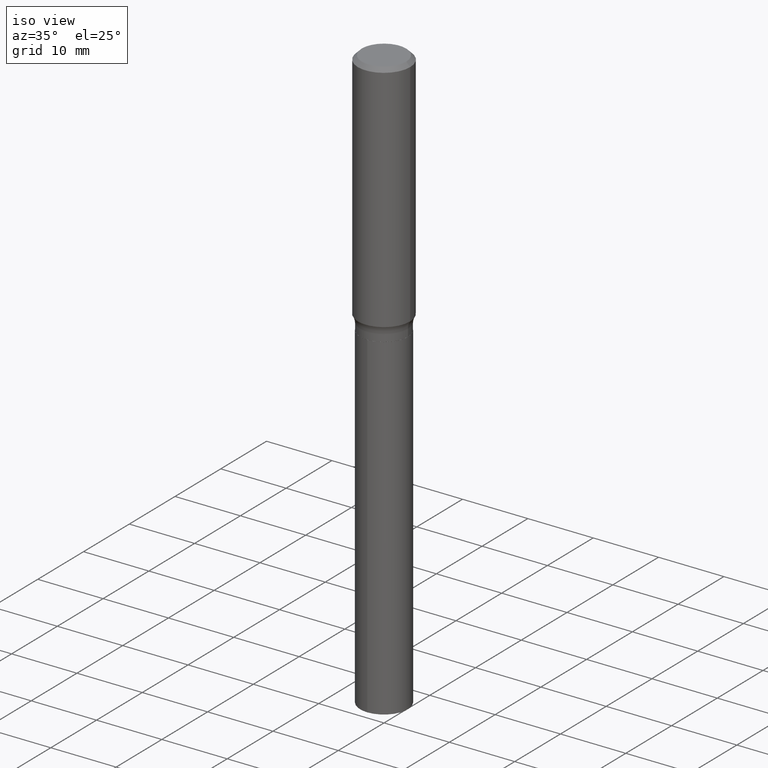
[diagram: clean part render]
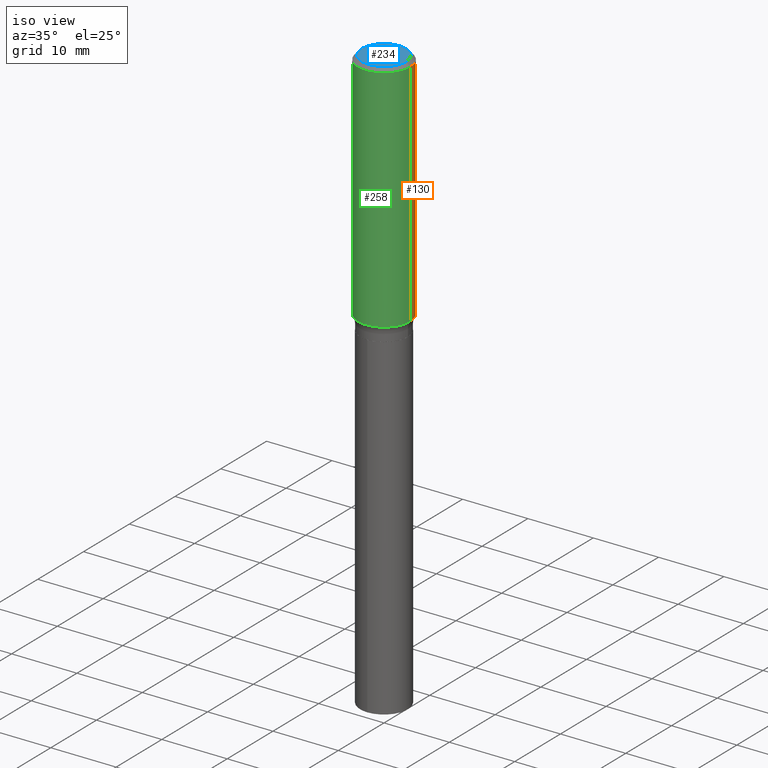
[diagram: same view with three faces highlighted in distinct colors, each labeled with its STEP entity id]
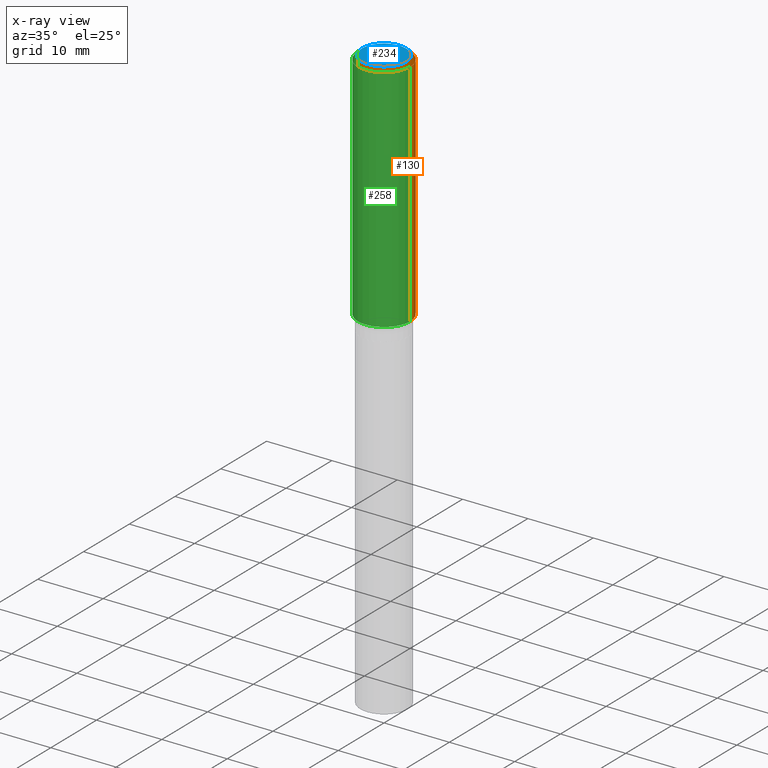
[diagram: x-ray of the same camera — body ghosted, the three highlighted faces saturated]
A machine part, iso view with three faces highlighted in distinct colors.
The next image is the same camera in x-ray (body ghosted, the three faces saturated) — at least one of them is partly hidden behind the body in this view.
Their STEP definitions:

[orange] entity #130 — the highlighted cylindrical surface (edge-blend (fillet) strip) has radius 4.0005 mm, axis along (-0, 0, 1).
#8 = CARTESIAN_POINT ( 'NONE',  ( -0.1575000000000000844, 1.119104808822158392E-15, -7.747322767151481189E-30 ) ) ;
#11 = DIRECTION ( 'NONE',  ( 1.000000000000000000, -6.982962677686265922E-15, 0.000000000000000000 ) ) ;
#36 = DIRECTION ( 'NONE',  ( -2.445468806185136597E-29, 3.491481338843145583E-15, 1.000000000000000000 ) ) ;
#50 = DIRECTION ( 'NONE',  ( 1.000000000000000000, -6.982962677686267499E-15, 0.000000000000000000 ) ) ;
#60 = CARTESIAN_POINT ( 'NONE',  ( 0.1575000000000001676, -6.017922358655901068E-15, -1.408601467292922571 ) ) ;
#63 = CARTESIAN_POINT ( 'NONE',  ( -0.1575000000000001676, -3.799000928098153617E-15, -1.408601467292922571 ) ) ;
#74 = DIRECTION ( 'NONE',  ( -2.445468806185136877E-29, 3.491481338843145188E-15, 1.000000000000000000 ) ) ;
#76 = AXIS2_PLACEMENT_3D ( 'NONE', #351, #36, #11 ) ;
#85 = VECTOR ( 'NONE', #277, 39.37007874015748143 ) ;
#88 = FACE_OUTER_BOUND ( 'NONE', #190, .T. ) ;
#116 = ORIENTED_EDGE ( 'NONE', *, *, #293, .F. ) ;
#128 = DIRECTION ( 'NONE',  ( 1.000000000000000000, -6.982962677686267499E-15, 4.876176775795936353E-29 ) ) ;
#130 = ADVANCED_FACE ( 'NONE', ( #88 ), #315, .T. ) ;
#161 = CARTESIAN_POINT ( 'NONE',  ( -0.1575000000000000011, -1.381191182953082113E-15, -0.02362500000000014588 ) ) ;
#190 = EDGE_LOOP ( 'NONE', ( #471, #263, #116, #416 ) ) ;
#194 = VERTEX_POINT ( 'NONE', #63 ) ;
#255 = EDGE_CURVE ( 'NONE', #194, #408, #346, .T. ) ;
#263 = ORIENTED_EDGE ( 'NONE', *, *, #255, .T. ) ;
#273 = CARTESIAN_POINT ( 'NONE',  ( 0.1575000000000000011, -1.182302868365756679E-15, -0.02362500000000014588 ) ) ;
#277 = DIRECTION ( 'NONE',  ( -2.445468806185136877E-29, 3.491481338843145188E-15, 1.000000000000000000 ) ) ;
#284 = CARTESIAN_POINT ( 'NONE',  ( 0.000000000000000000, 0.000000000000000000, 0.000000000000000000 ) ) ;
#285 = CARTESIAN_POINT ( 'NONE',  ( 3.444690948611454884E-29, -4.918105736920312010E-15, -1.408601467292922571 ) ) ;
#293 = EDGE_CURVE ( 'NONE', #345, #408, #295, .T. ) ;
#295 = CIRCLE ( 'NONE', #76, 0.1575000000000000011 ) ;
#315 = CYLINDRICAL_SURFACE ( 'NONE', #347, 0.1575000000000000844 ) ;
#318 = AXIS2_PLACEMENT_3D ( 'NONE', #285, #355, #50 ) ;
#339 = VERTEX_POINT ( 'NONE', #60 ) ;
#345 = VERTEX_POINT ( 'NONE', #273 ) ;
#346 = LINE ( 'NONE', #8, #476 ) ;
#347 = AXIS2_PLACEMENT_3D ( 'NONE', #284, #431, #128 ) ;
#351 = CARTESIAN_POINT ( 'NONE',  ( 5.777420054612421104E-31, -8.248624663016984002E-17, -0.02362500000000014588 ) ) ;
#355 = DIRECTION ( 'NONE',  ( -2.445468806185136597E-29, 3.491481338843145583E-15, 1.000000000000000000 ) ) ;
#383 = EDGE_CURVE ( 'NONE', #339, #194, #406, .T. ) ;
#405 = EDGE_CURVE ( 'NONE', #339, #345, #427, .T. ) ;
#406 = CIRCLE ( 'NONE', #318, 0.1575000000000001676 ) ;
#408 = VERTEX_POINT ( 'NONE', #161 ) ;
#416 = ORIENTED_EDGE ( 'NONE', *, *, #405, .F. ) ;
#427 = LINE ( 'NONE', #434, #85 ) ;
#431 = DIRECTION ( 'NONE',  ( -2.445468806185136597E-29, 3.491481338843145583E-15, 1.000000000000000000 ) ) ;
#434 = CARTESIAN_POINT ( 'NONE',  ( 0.1575000000000000844, -1.099816621735587677E-15, 7.679978421878603638E-30 ) ) ;
#471 = ORIENTED_EDGE ( 'NONE', *, *, #383, .T. ) ;
#476 = VECTOR ( 'NONE', #74, 39.37007874015748143 ) ;

[blue] entity #234 — the highlighted planar face has unit normal (0, -0, -1).
#5 = EDGE_LOOP ( 'NONE', ( #73, #448 ) ) ;
#16 = CARTESIAN_POINT ( 'NONE',  ( -1.002970424325032604E-46, 1.431975951230895391E-32, 4.101342130344482109E-18 ) ) ;
#73 = ORIENTED_EDGE ( 'NONE', *, *, #391, .T. ) ;
#84 = AXIS2_PLACEMENT_3D ( 'NONE', #185, #379, #377 ) ;
#109 = FACE_OUTER_BOUND ( 'NONE', #5, .T. ) ;
#121 = DIRECTION ( 'NONE',  ( 1.000000000000000000, -6.982962677686266711E-15, 4.876170806578254279E-29 ) ) ;
#137 = AXIS2_PLACEMENT_3D ( 'NONE', #191, #154, #228 ) ;
#154 = DIRECTION ( 'NONE',  ( -2.445468806185136597E-29, 3.491481338843145583E-15, 1.000000000000000000 ) ) ;
#172 = CIRCLE ( 'NONE', #456, 0.1338749999999999940 ) ;
#185 = CARTESIAN_POINT ( 'NONE',  ( -5.014852121625163022E-47, 7.159879756154476955E-33, 2.050671065172241055E-18 ) ) ;
#189 = CARTESIAN_POINT ( 'NONE',  ( -0.1338749999999999940, 9.760872517903331886E-16, 4.101342130337800673E-18 ) ) ;
#191 = CARTESIAN_POINT ( 'NONE',  ( -1.002970424325032604E-46, 1.431975951230895391E-32, 4.101342130344482109E-18 ) ) ;
#228 = DIRECTION ( 'NONE',  ( 1.000000000000000000, -6.982962677686266711E-15, 4.876170806578254279E-29 ) ) ;
#234 = ADVANCED_FACE ( 'NONE', ( #109 ), #310, .F. ) ;
#249 = VERTEX_POINT ( 'NONE', #189 ) ;
#262 = CARTESIAN_POINT ( 'NONE',  ( 0.1338749999999999940, -1.040731925365424925E-15, 4.101342130351390035E-18 ) ) ;
#269 = EDGE_CURVE ( 'NONE', #280, #249, #466, .T. ) ;
#280 = VERTEX_POINT ( 'NONE', #262 ) ;
#310 = PLANE ( 'NONE',  #84 ) ;
#312 = DIRECTION ( 'NONE',  ( -2.445468806185136597E-29, 3.491481338843145583E-15, 1.000000000000000000 ) ) ;
#377 = DIRECTION ( 'NONE',  ( -1.000000000000000000, 6.982962677686265922E-15, -4.876176775795935793E-29 ) ) ;
#379 = DIRECTION ( 'NONE',  ( 2.438088387897960049E-29, -3.491481338843145188E-15, -1.000000000000000000 ) ) ;
#391 = EDGE_CURVE ( 'NONE', #249, #280, #172, .T. ) ;
#448 = ORIENTED_EDGE ( 'NONE', *, *, #269, .T. ) ;
#456 = AXIS2_PLACEMENT_3D ( 'NONE', #16, #312, #121 ) ;
#466 = CIRCLE ( 'NONE', #137, 0.1338749999999999940 ) ;

[green] entity #258 — the highlighted cylindrical surface (edge-blend (fillet) strip) has radius 4.0005 mm, axis along (-0, 0, 1).
#8 = CARTESIAN_POINT ( 'NONE',  ( -0.1575000000000000844, 1.119104808822158392E-15, -7.747322767151481189E-30 ) ) ;
#14 = EDGE_CURVE ( 'NONE', #408, #345, #136, .T. ) ;
#15 = ORIENTED_EDGE ( 'NONE', *, *, #255, .F. ) ;
#48 = FACE_OUTER_BOUND ( 'NONE', #459, .T. ) ;
#60 = CARTESIAN_POINT ( 'NONE',  ( 0.1575000000000001676, -6.017922358655901068E-15, -1.408601467292922571 ) ) ;
#63 = CARTESIAN_POINT ( 'NONE',  ( -0.1575000000000001676, -3.799000928098153617E-15, -1.408601467292922571 ) ) ;
#66 = CIRCLE ( 'NONE', #338, 0.1575000000000001676 ) ;
#74 = DIRECTION ( 'NONE',  ( -2.445468806185136877E-29, 3.491481338843145188E-15, 1.000000000000000000 ) ) ;
#78 = CARTESIAN_POINT ( 'NONE',  ( 3.444690948611454884E-29, -4.918105736920312010E-15, -1.408601467292922571 ) ) ;
#85 = VECTOR ( 'NONE', #277, 39.37007874015748143 ) ;
#113 = ORIENTED_EDGE ( 'NONE', *, *, #275, .T. ) ;
#114 = AXIS2_PLACEMENT_3D ( 'NONE', #413, #340, #411 ) ;
#136 = CIRCLE ( 'NONE', #362, 0.1575000000000000011 ) ;
#161 = CARTESIAN_POINT ( 'NONE',  ( -0.1575000000000000011, -1.381191182953082113E-15, -0.02362500000000014588 ) ) ;
#194 = VERTEX_POINT ( 'NONE', #63 ) ;
#225 = ORIENTED_EDGE ( 'NONE', *, *, #405, .T. ) ;
#255 = EDGE_CURVE ( 'NONE', #194, #408, #346, .T. ) ;
#258 = ADVANCED_FACE ( 'NONE', ( #48 ), #301, .T. ) ;
#272 = DIRECTION ( 'NONE',  ( 1.000000000000000000, -6.982962677686265922E-15, 0.000000000000000000 ) ) ;
#273 = CARTESIAN_POINT ( 'NONE',  ( 0.1575000000000000011, -1.182302868365756679E-15, -0.02362500000000014588 ) ) ;
#275 = EDGE_CURVE ( 'NONE', #194, #339, #66, .T. ) ;
#277 = DIRECTION ( 'NONE',  ( -2.445468806185136877E-29, 3.491481338843145188E-15, 1.000000000000000000 ) ) ;
#282 = CARTESIAN_POINT ( 'NONE',  ( 5.777420054612421104E-31, -8.248624663016984002E-17, -0.02362500000000014588 ) ) ;
#301 = CYLINDRICAL_SURFACE ( 'NONE', #114, 0.1575000000000000844 ) ;
#307 = DIRECTION ( 'NONE',  ( -2.445468806185136597E-29, 3.491481338843145583E-15, 1.000000000000000000 ) ) ;
#338 = AXIS2_PLACEMENT_3D ( 'NONE', #78, #307, #374 ) ;
#339 = VERTEX_POINT ( 'NONE', #60 ) ;
#340 = DIRECTION ( 'NONE',  ( -2.445468806185136597E-29, 3.491481338843145583E-15, 1.000000000000000000 ) ) ;
#345 = VERTEX_POINT ( 'NONE', #273 ) ;
#346 = LINE ( 'NONE', #8, #476 ) ;
#362 = AXIS2_PLACEMENT_3D ( 'NONE', #282, #381, #272 ) ;
#374 = DIRECTION ( 'NONE',  ( 1.000000000000000000, -6.982962677686267499E-15, 0.000000000000000000 ) ) ;
#381 = DIRECTION ( 'NONE',  ( -2.445468806185136597E-29, 3.491481338843145583E-15, 1.000000000000000000 ) ) ;
#405 = EDGE_CURVE ( 'NONE', #339, #345, #427, .T. ) ;
#408 = VERTEX_POINT ( 'NONE', #161 ) ;
#411 = DIRECTION ( 'NONE',  ( 1.000000000000000000, -6.982962677686267499E-15, 4.876176775795936353E-29 ) ) ;
#413 = CARTESIAN_POINT ( 'NONE',  ( 0.000000000000000000, 0.000000000000000000, 0.000000000000000000 ) ) ;
#427 = LINE ( 'NONE', #434, #85 ) ;
#434 = CARTESIAN_POINT ( 'NONE',  ( 0.1575000000000000844, -1.099816621735587677E-15, 7.679978421878603638E-30 ) ) ;
#444 = ORIENTED_EDGE ( 'NONE', *, *, #14, .F. ) ;
#459 = EDGE_LOOP ( 'NONE', ( #15, #113, #225, #444 ) ) ;
#476 = VECTOR ( 'NONE', #74, 39.37007874015748143 ) ;